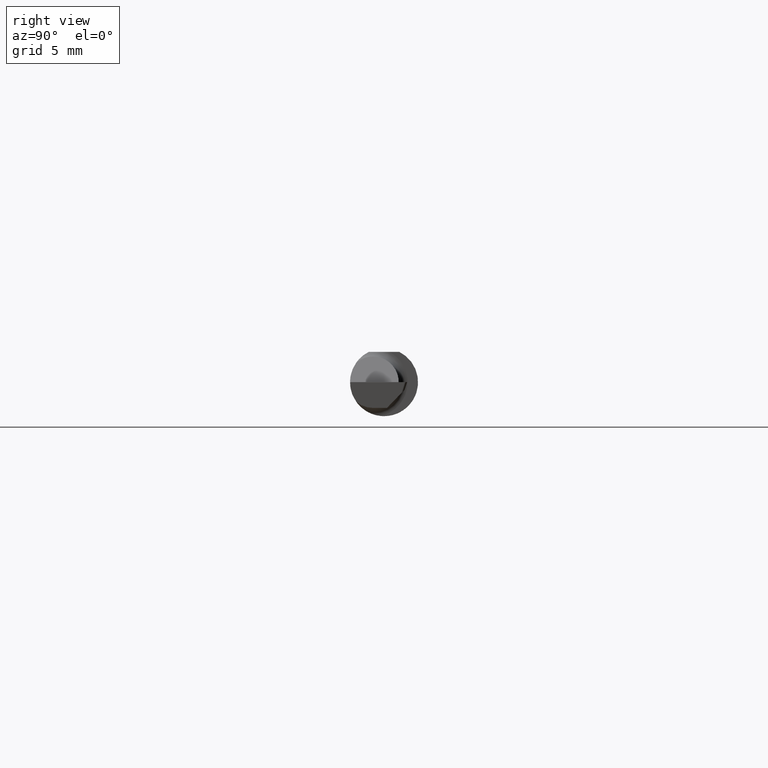
[diagram: clean part render]
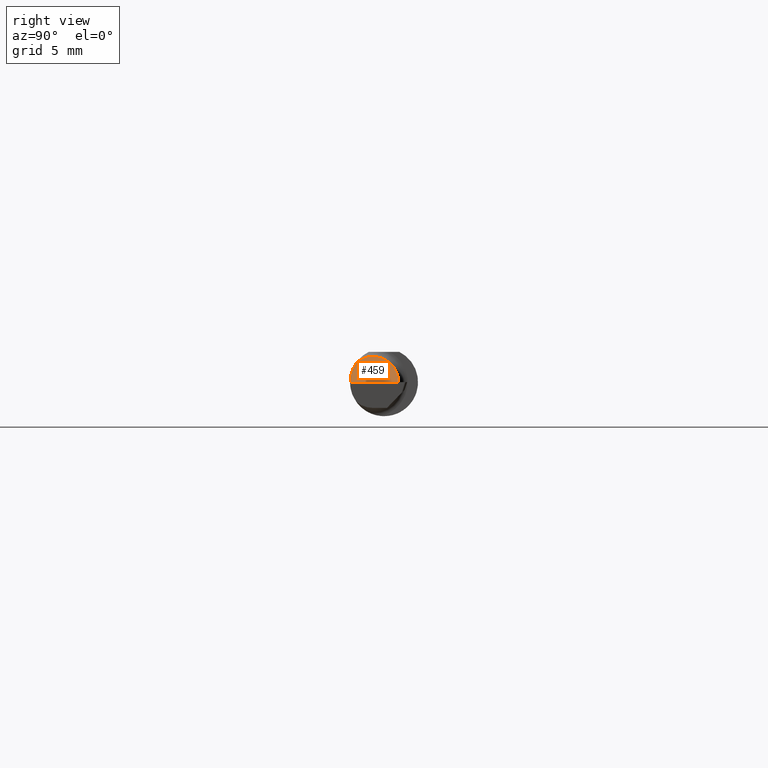
[diagram: same view with one face highlighted and labeled with its STEP entity id]
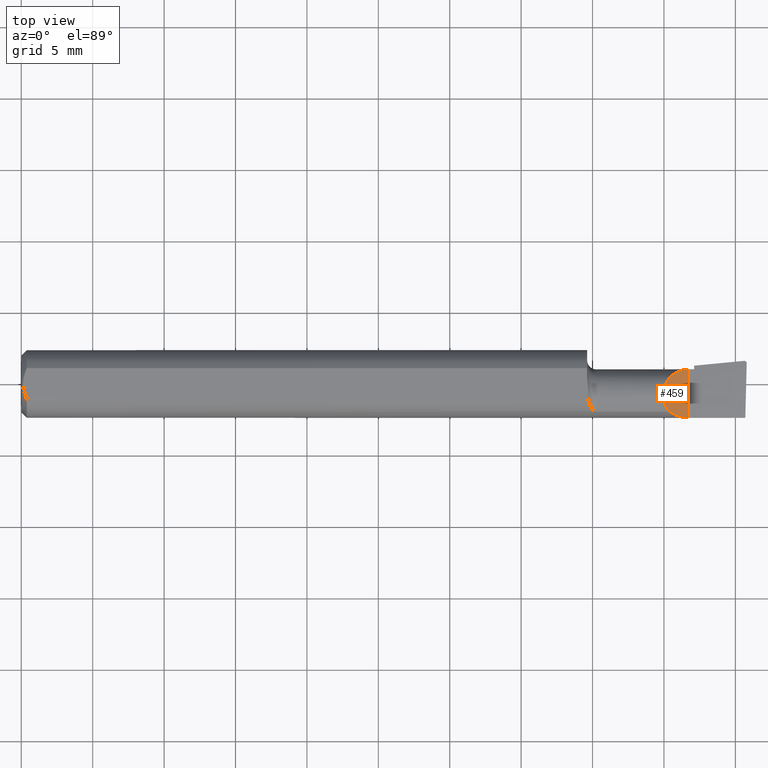
[diagram: same view with one face highlighted and labeled with its STEP entity id]
A machine part, right view. The second image highlights one B-rep face of the part: STEP entity #459.
A second angle (top view) of the same face is appended — the face is thin or edge-on in the first view.
In plain terms, the highlighted planar face has unit normal (-0.7071, 0, -0.7071).
Its self-contained STEP definition (entity closure, byte-faithful):
#18 = PLANE ( 'NONE',  #148 ) ;
#48 = CARTESIAN_POINT ( 'NONE',  ( 1.769987205483423143, 0.04039999999999997066, 0.07001279451657603514 ) ) ;
#83 = CARTESIAN_POINT ( 'NONE',  ( 1.786018743734982150, -0.07646557377049197080, 0.05398125626501716623 ) ) ;
#88 = CARTESIAN_POINT ( 'NONE',  ( 1.786018743734982150, -0.07646557377049197080, 0.05398125626501716623 ) ) ;
#90 = CARTESIAN_POINT ( 'NONE',  ( 1.801938678439108932, -0.08770433171880964718, 0.03806132156089073182 ) ) ;
#97 = FACE_OUTER_BOUND ( 'NONE', #469, .T. ) ;
#121 = VERTEX_POINT ( 'NONE', #83 ) ;
#147 =( BOUNDED_CURVE ( )  B_SPLINE_CURVE ( 3, ( #244, #544, #48, #216 ),
 .UNSPECIFIED., .F., .T. ) 
 B_SPLINE_CURVE_WITH_KNOTS ( ( 4, 4 ),
 ( 5.577815324852163137, 7.853981633974482790 ),
 .UNSPECIFIED. ) 
 CURVE ( )  GEOMETRIC_REPRESENTATION_ITEM ( )  RATIONAL_B_SPLINE_CURVE ( ( 1.000000000000000000, 0.6128902971210721251, 0.6128902971210721251, 1.000000000000000000 ) ) 
 REPRESENTATION_ITEM ( '' )  );
#148 = AXIS2_PLACEMENT_3D ( 'NONE', #375, #464, #635 ) ;
#154 = EDGE_CURVE ( 'NONE', #177, #121, #374, .T. ) ;
#157 = CARTESIAN_POINT ( 'NONE',  ( 1.820512722067858524, -0.09360000000000001652, 0.01948727793214129894 ) ) ;
#158 = CARTESIAN_POINT ( 'NONE',  ( 1.840000000000000080, -0.09360000000000005815, 1.959434878635762025E-17 ) ) ;
#177 = VERTEX_POINT ( 'NONE', #591 ) ;
#216 = CARTESIAN_POINT ( 'NONE',  ( 1.840000000000000080, 0.04039999999999989433, 1.959434878635762025E-17 ) ) ;
#241 = EDGE_CURVE ( 'NONE', #177, #435, #650, .T. ) ;
#244 = CARTESIAN_POINT ( 'NONE',  ( 1.786018743734982150, -0.07646557377049197080, 0.05398125626501716623 ) ) ;
#328 = CARTESIAN_POINT ( 'NONE',  ( 1.840000000000000080, 0.04039999999999989433, 1.959434878635762025E-17 ) ) ;
#356 = ORIENTED_EDGE ( 'NONE', *, *, #430, .F. ) ;
#374 =( BOUNDED_CURVE ( )  B_SPLINE_CURVE ( 3, ( #158, #157, #90, #88 ),
 .UNSPECIFIED., .F., .F. ) 
 B_SPLINE_CURVE_WITH_KNOTS ( ( 4, 4 ),
 ( 4.712388980384689674, 5.327100436569645936 ),
 .UNSPECIFIED. ) 
 CURVE ( )  GEOMETRIC_REPRESENTATION_ITEM ( )  RATIONAL_B_SPLINE_CURVE ( ( 1.000000000000000000, 0.9687579316594157053, 0.9687579316594157053, 1.000000000000000000 ) ) 
 REPRESENTATION_ITEM ( '' )  );
#375 = CARTESIAN_POINT ( 'NONE',  ( 1.840000000000000080, -0.2500000000000000555, 1.959434878635762025E-17 ) ) ;
#416 = CARTESIAN_POINT ( 'NONE',  ( 1.840000000000000080, -0.2500000000000000555, 1.959434878635762025E-17 ) ) ;
#430 = EDGE_CURVE ( 'NONE', #121, #435, #147, .T. ) ;
#435 = VERTEX_POINT ( 'NONE', #328 ) ;
#437 = ORIENTED_EDGE ( 'NONE', *, *, #154, .F. ) ;
#459 = ADVANCED_FACE ( 'NONE', ( #97 ), #18, .F. ) ;
#464 = DIRECTION ( 'NONE',  ( -0.7071067811865433539, 0.0000000000000000000, -0.7071067811865516806 ) ) ;
#469 = EDGE_LOOP ( 'NONE', ( #356, #437, #669 ) ) ;
#492 = DIRECTION ( 'NONE',  ( -0.0000000000000000000, 1.000000000000000000, -0.0000000000000000000 ) ) ;
#507 = VECTOR ( 'NONE', #492, 39.37007874015748143 ) ;
#544 = CARTESIAN_POINT ( 'NONE',  ( 1.740628359091399346, -0.02315981068686319075, 0.09937164090859931798 ) ) ;
#591 = CARTESIAN_POINT ( 'NONE',  ( 1.840000000000000080, -0.09360000000000005815, 1.959434878635762025E-17 ) ) ;
#635 = DIRECTION ( 'NONE',  ( -0.7071067811865516806, 0.0000000000000000000, 0.7071067811865433539 ) ) ;
#650 = LINE ( 'NONE', #416, #507 ) ;
#669 = ORIENTED_EDGE ( 'NONE', *, *, #241, .T. ) ;